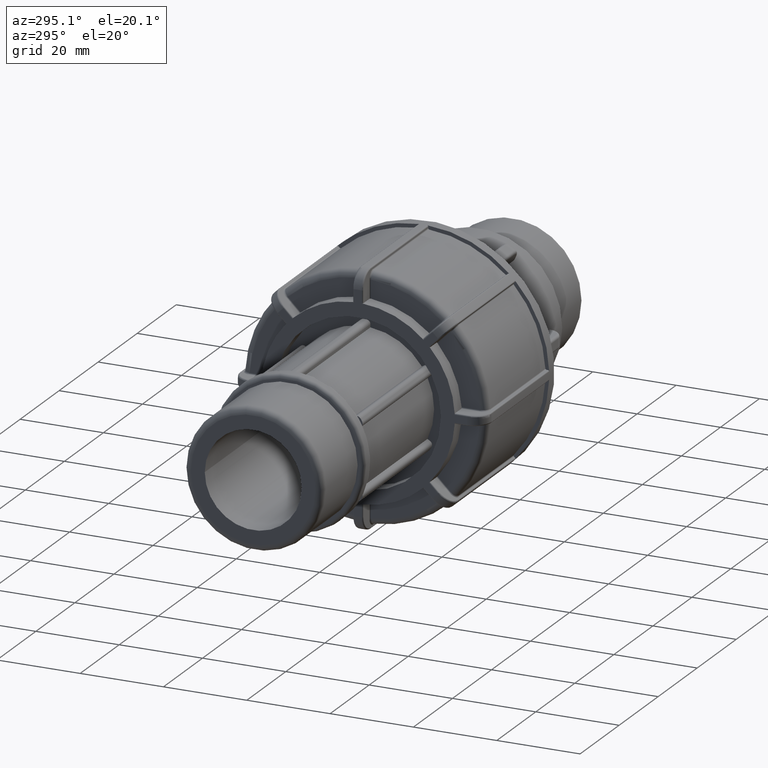
[diagram: clean part render]
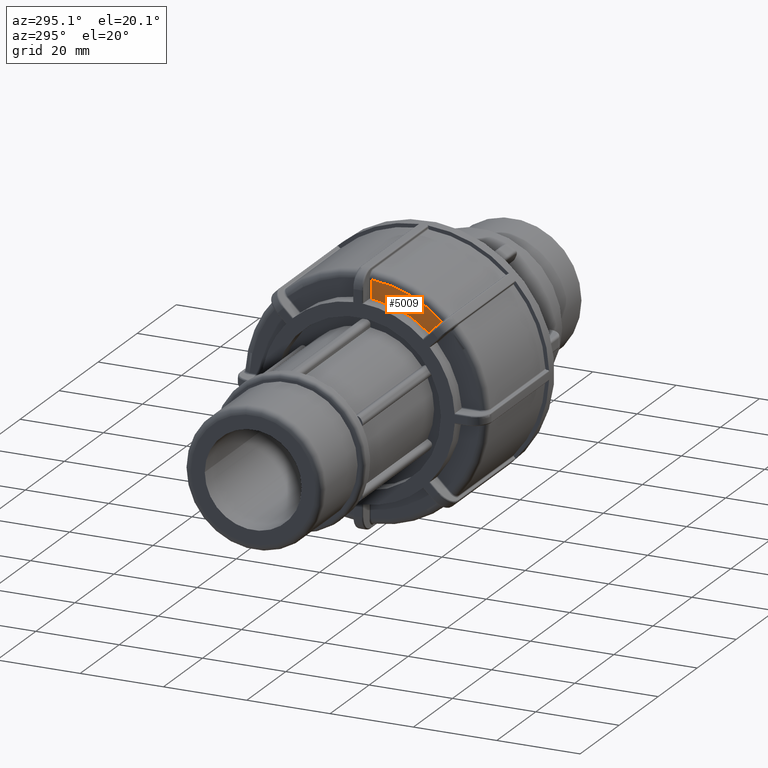
[diagram: same view with one face highlighted and labeled with its STEP entity id]
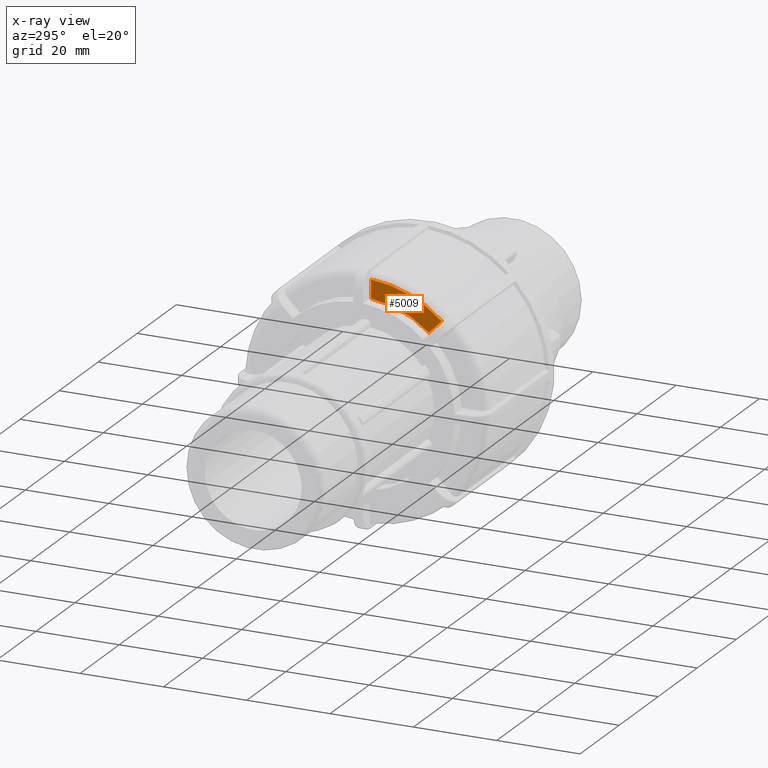
[diagram: x-ray of the same camera — body ghosted, the highlighted face saturated]
A machine part, auxiliary view. The second image highlights one B-rep face of the part: STEP entity #5009.
The next image is the same camera in x-ray: the body ghosted, the highlighted face saturated — about 0% of this face is hidden behind the body in this view.
In plain terms, the highlighted planar face has unit normal (-1, 0, 0).
Its self-contained STEP definition (entity closure, byte-faithful):
#148=PLANE('',#5578);
#470=FACE_OUTER_BOUND('',#777,.T.);
#777=EDGE_LOOP('',(#4533,#4534,#4535,#4536));
#1118=LINE('',#8862,#1444);
#1142=LINE('',#9245,#1468);
#1444=VECTOR('',#6457,4.41359345346749);
#1468=VECTOR('',#6565,4.41359345346856);
#1772=CIRCLE('',#5395,23.2743);
#1863=CIRCLE('',#5569,27.68005);
#2175=VERTEX_POINT('',#8847);
#2177=VERTEX_POINT('',#8860);
#2213=VERTEX_POINT('',#9226);
#2214=VERTEX_POINT('',#9234);
#2802=EDGE_CURVE('',#2177,#2175,#1118,.T.);
#2867=EDGE_CURVE('',#2214,#2213,#1142,.T.);
#2868=EDGE_CURVE('',#2214,#2175,#1772,.T.);
#3080=EDGE_CURVE('',#2213,#2177,#1863,.T.);
#4533=ORIENTED_EDGE('',*,*,#2802,.F.);
#4534=ORIENTED_EDGE('',*,*,#3080,.F.);
#4535=ORIENTED_EDGE('',*,*,#2867,.F.);
#4536=ORIENTED_EDGE('',*,*,#2868,.T.);
#5009=ADVANCED_FACE('',(#470),#148,.T.);
#5395=AXIS2_PLACEMENT_3D('',#9247,#6568,#6569);
#5569=AXIS2_PLACEMENT_3D('',#10008,#7013,#7014);
#5578=AXIS2_PLACEMENT_3D('',#10017,#7031,#7032);
#6457=DIRECTION('',(0.,0.707106781186547,-0.707106781186548));
#6565=DIRECTION('',(0.,0.,1.));
#6568=DIRECTION('center_axis',(1.,0.,0.));
#6569=DIRECTION('ref_axis',(0.,0.,-1.));
#7013=DIRECTION('center_axis',(1.,0.,0.));
#7014=DIRECTION('ref_axis',(0.,-1.,1.83697019872103E-16));
#7031=DIRECTION('center_axis',(-1.,0.,0.));
#7032=DIRECTION('ref_axis',(0.,0.,1.));
#8847=CARTESIAN_POINT('',(-76.8,-15.3531284361029,17.4921264491922));
#8860=CARTESIAN_POINT('',(-76.8,-18.4740102964503,20.6130083095396));
#8862=CARTESIAN_POINT('',(-76.8,1.3519459962432,0.787052016846106));
#9226=CARTESIAN_POINT('',(-76.8,-1.51249999999992,27.6386959126613));
#9234=CARTESIAN_POINT('',(-76.8,-1.5125,23.2251024591927));
#9245=CARTESIAN_POINT('',(-76.8,-1.5125,15.1128951561241));
#9247=CARTESIAN_POINT('Origin',(-76.8,0.,0.));
#10008=CARTESIAN_POINT('Origin',(-76.8,0.,0.));
#10017=CARTESIAN_POINT('Origin',(-76.8,29.3425,0.));